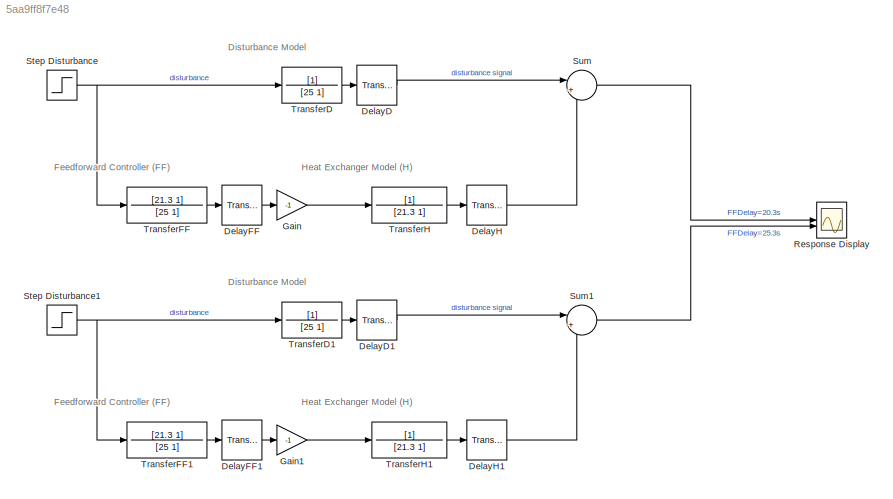
MODEL slx_5aa9ff8f7e48
KIND model
CONFIG AbsTol = auto
CONFIG EnableMultiTasking = off
CONFIG FixedStep = auto
CONFIG MaxStep = auto
CONFIG MinStep = auto
CONFIG RelTol = 1e-3
CONFIG SampleTimeConstraint = Unconstrained
CONFIG SolverName = VariableStepAuto
CONFIG StartTime = 0.0
CONFIG StopTime = 500
BLOCK [TransportDelay] DelayD
  DelayTime = 35
BLOCK [TransportDelay] DelayD1
  DelayTime = 35
BLOCK [TransportDelay] DelayFF
  DelayTime = 20.3
BLOCK [TransportDelay] DelayFF1
  DelayTime = 25.3
BLOCK [TransportDelay] DelayH
  DelayTime = 14.7
BLOCK [TransportDelay] DelayH1
  DelayTime = 14.7
BLOCK [Gain] Gain
  Gain = -1
BLOCK [Gain] Gain1
  Gain = -1
BLOCK [Scope] Response Display
  ActiveDisplayYMaximum = 2.1751996684004959
  ActiveDisplayYMinimum = -0.51850689271566752
  Floating = off
  GraphicalSettings = {"Style":{"BackgroundColor":[0.12941176470588237,0.12941176470588237,0.12941176470588237],"AxesColor":[0.07058823529411765,0.07058823529411765,0.07058823529411765],"LabelsColor":[0.8509803921568627,0.8509803921568627,0.8509803921568627],"PreserveColors":false,"Visible":[true,true,true],"LineStyle":["-","-","-"],"LineWidth":[0.75,1.5,1.5],"BarWidth":[0.9,0.9,0.9],"LineColor":["auto","auto","auto"],...<+2348ch>
  MultipleDisplayCache = [{"MaxYLimMag":1.9969667728385565,"MaxYLimReal":2.1751996684004959,"MinYLimMag":0,"MinYLimReal":-0.51850689271566752,"PlotAsMagnitudePhase":false,"ShowGrid":true,"ShowLegend":true,"Title":"%<SignalLabel>","YLabel":""}]
  NumInputPorts = 2
  ScopeFrameLocation = window
  ShowLegend = on
  WasSavedAsWebScope = on
  WindowPosition = [239.000000,36.000000,803.000000,649.000000,]
BLOCK [Step] Step Disturbance
  SampleTime = 0
  Time = 0
BLOCK [Step] Step Disturbance1
  SampleTime = 0
  Time = 0
BLOCK [Sum] Sum
  Inputs = |++
BLOCK [Sum] Sum1
  Inputs = |++
BLOCK [TransferFcn] TransferD
  ContinuousStateAttributes = 'heat'
  Denominator = [25 1]
BLOCK [TransferFcn] TransferD1
  ContinuousStateAttributes = 'heat'
  Denominator = [25 1]
BLOCK [TransferFcn] TransferFF
  ContinuousStateAttributes = 'heat'
  Denominator = [25 1]
  Numerator = [21.3 1]
BLOCK [TransferFcn] TransferFF1
  ContinuousStateAttributes = 'heat'
  Denominator = [25 1]
  Numerator = [21.3 1]
BLOCK [TransferFcn] TransferH
  ContinuousStateAttributes = 'heat'
  Denominator = [21.3 1]
BLOCK [TransferFcn] TransferH1
  ContinuousStateAttributes = 'heat'
  Denominator = [21.3 1]
ANNOTATION (root): Feedforward Controller (FF)
ANNOTATION (root): Disturbance Model
ANNOTATION (root): Heat Exchanger Model (H)
LINE DelayD1:1 -> Sum1:1
LINE DelayD:1 -> Sum:1
LINE DelayFF1:1 -> Gain1:1
LINE DelayFF:1 -> Gain:1
LINE DelayH1:1 -> Sum1:2
LINE DelayH:1 -> Sum:2
LINE Gain1:1 -> TransferH1:1
LINE Gain:1 -> TransferH:1
NET Step Disturbance1:1 -> TransferD1:1, TransferFF1:1
NET Step Disturbance:1 -> TransferD:1, TransferFF:1
LINE Sum1:1 -> Response Display:2
LINE Sum:1 -> Response Display:1
LINE TransferD1:1 -> DelayD1:1
LINE TransferD:1 -> DelayD:1
LINE TransferFF1:1 -> DelayFF1:1
LINE TransferFF:1 -> DelayFF:1
LINE TransferH1:1 -> DelayH1:1
LINE TransferH:1 -> DelayH:1
note: NET lines group one-source signal fan-out (src -> all destinations, sorted); 1:1 wires keep LINE
